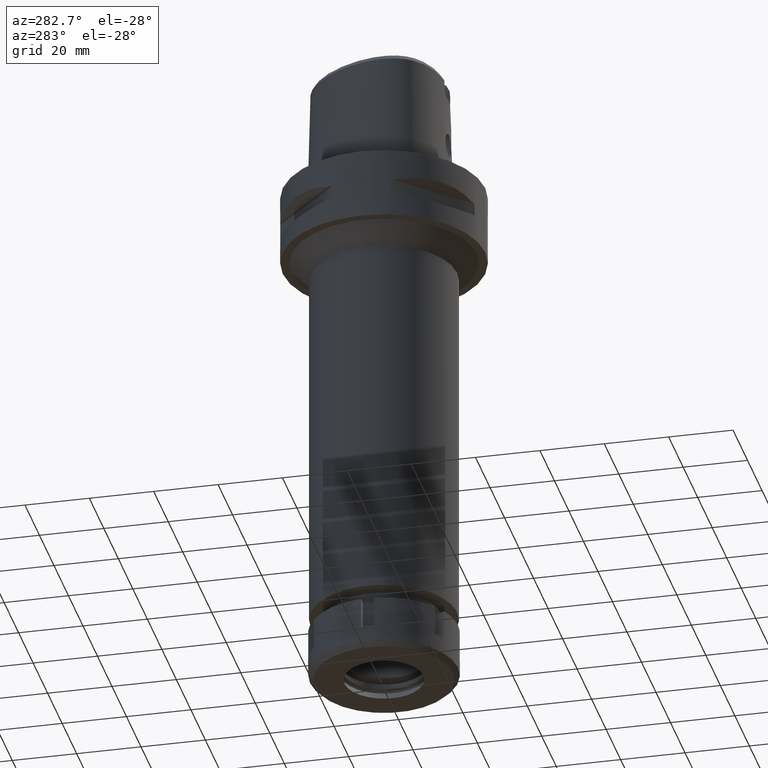
[diagram: clean part render]
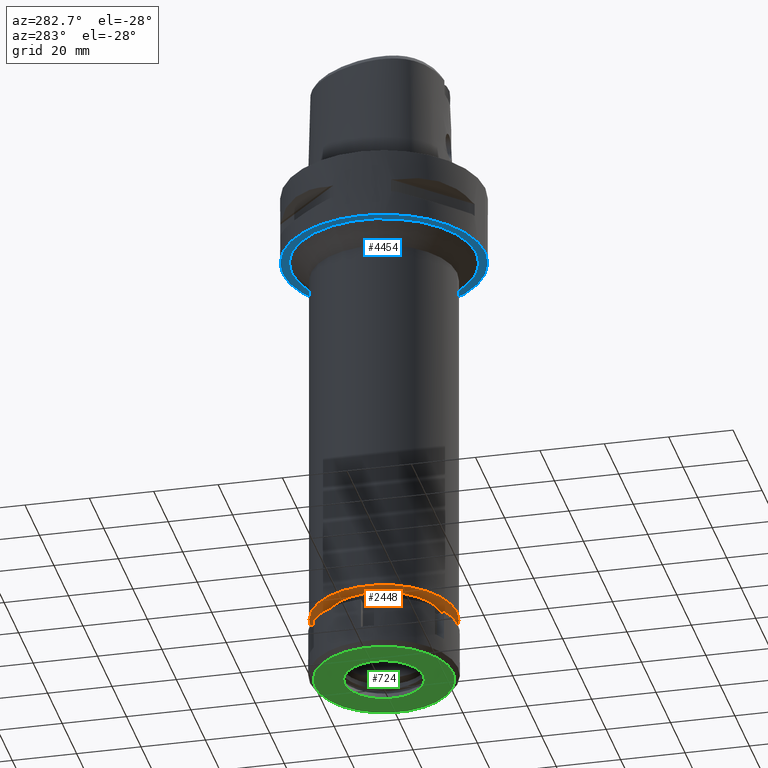
[diagram: same view with three faces highlighted in distinct colors, each labeled with its STEP entity id]
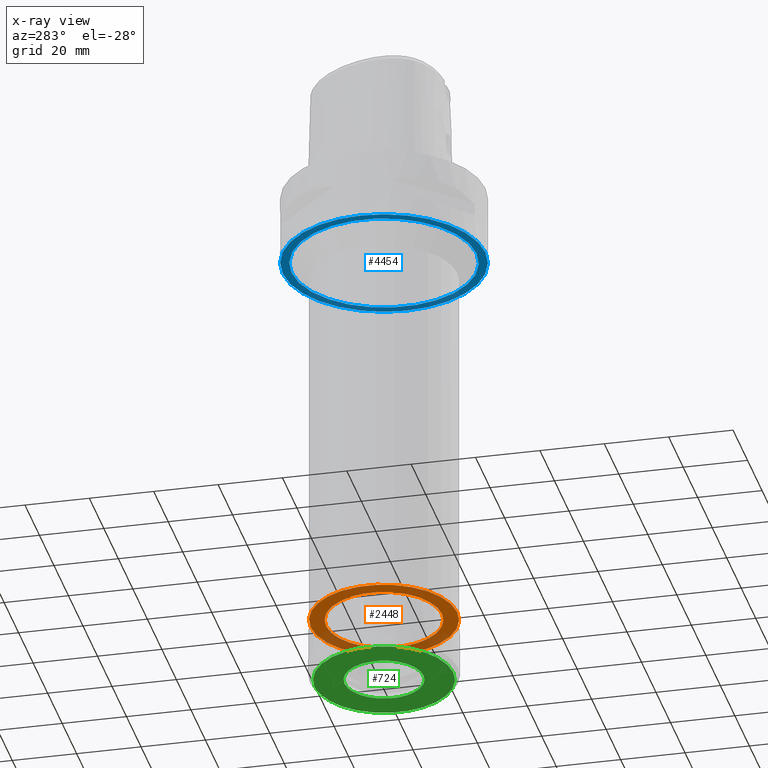
[diagram: x-ray of the same camera — body ghosted, the three highlighted faces saturated]
A machine part, auxiliary view with three faces highlighted in distinct colors.
The next image is the same camera in x-ray (body ghosted, the three faces saturated) — at least one of them is partly hidden behind the body in this view.
Their STEP definitions:

[orange] entity #2448 — the highlighted planar face has unit normal (0, 0, -1).
#31 = EDGE_CURVE ( 'NONE', #2911, #3392, #583, .T. ) ;
#98 = EDGE_CURVE ( 'NONE', #3392, #2911, #4727, .T. ) ;
#118 = CARTESIAN_POINT ( 'NONE',  ( 0.0000000000000000000, 18.00000000000000000, -144.5000000000000000 ) ) ;
#204 = ORIENTED_EDGE ( 'NONE', *, *, #1421, .F. ) ;
#315 = CIRCLE ( 'NONE', #3490, 22.75000000000000000 ) ;
#513 = CARTESIAN_POINT ( 'NONE',  ( 0.0000000000000000000, 1.320781572880000066E-14, -144.5000000000000000 ) ) ;
#524 = CIRCLE ( 'NONE', #5201, 22.75000000000000000 ) ;
#583 = CIRCLE ( 'NONE', #4000, 18.00000000000000000 ) ;
#1161 = ORIENTED_EDGE ( 'NONE', *, *, #31, .F. ) ;
#1255 = DIRECTION ( 'NONE',  ( 0.0000000000000000000, 1.000000000000000000, 0.0000000000000000000 ) ) ;
#1343 = VERTEX_POINT ( 'NONE', #4981 ) ;
#1421 = EDGE_CURVE ( 'NONE', #1343, #1958, #315, .T. ) ;
#1439 = DIRECTION ( 'NONE',  ( 0.0000000000000000000, 0.0000000000000000000, 1.000000000000000000 ) ) ;
#1488 = PLANE ( 'NONE',  #3668 ) ;
#1669 = DIRECTION ( 'NONE',  ( 0.0000000000000000000, -1.000000000000000000, 0.0000000000000000000 ) ) ;
#1823 = ORIENTED_EDGE ( 'NONE', *, *, #3563, .F. ) ;
#1958 = VERTEX_POINT ( 'NONE', #2462 ) ;
#2112 = AXIS2_PLACEMENT_3D ( 'NONE', #3817, #5528, #1669 ) ;
#2448 = ADVANCED_FACE ( 'NONE', ( #5344, #3275 ), #1488, .T. ) ;
#2462 = CARTESIAN_POINT ( 'NONE',  ( 0.0000000000000000000, -22.75000000000000000, -144.5000000000000000 ) ) ;
#2553 = EDGE_LOOP ( 'NONE', ( #1161, #3944 ) ) ;
#2611 = CARTESIAN_POINT ( 'NONE',  ( 0.0000000000000000000, 1.320781572880000066E-14, -144.5000000000000000 ) ) ;
#2786 = DIRECTION ( 'NONE',  ( 0.0000000000000000000, -1.000000000000000000, 0.0000000000000000000 ) ) ;
#2911 = VERTEX_POINT ( 'NONE', #118 ) ;
#3275 = FACE_BOUND ( 'NONE', #2553, .T. ) ;
#3392 = VERTEX_POINT ( 'NONE', #5135 ) ;
#3490 = AXIS2_PLACEMENT_3D ( 'NONE', #2611, #3880, #4380 ) ;
#3563 = EDGE_CURVE ( 'NONE', #1958, #1343, #524, .T. ) ;
#3668 = AXIS2_PLACEMENT_3D ( 'NONE', #4050, #4930, #2786 ) ;
#3817 = CARTESIAN_POINT ( 'NONE',  ( 0.0000000000000000000, 1.320781572880000066E-14, -144.5000000000000000 ) ) ;
#3872 = DIRECTION ( 'NONE',  ( 0.0000000000000000000, 0.0000000000000000000, -1.000000000000000000 ) ) ;
#3880 = DIRECTION ( 'NONE',  ( 0.0000000000000000000, 0.0000000000000000000, 1.000000000000000000 ) ) ;
#3944 = ORIENTED_EDGE ( 'NONE', *, *, #98, .F. ) ;
#4000 = AXIS2_PLACEMENT_3D ( 'NONE', #5164, #3872, #1255 ) ;
#4041 = EDGE_LOOP ( 'NONE', ( #204, #1823 ) ) ;
#4050 = CARTESIAN_POINT ( 'NONE',  ( 0.0000000000000000000, 0.0000000000000000000, -144.5000000000000000 ) ) ;
#4380 = DIRECTION ( 'NONE',  ( 0.0000000000000000000, 1.000000000000000000, 0.0000000000000000000 ) ) ;
#4727 = CIRCLE ( 'NONE', #2112, 18.00000000000000000 ) ;
#4773 = DIRECTION ( 'NONE',  ( 0.0000000000000000000, -1.000000000000000000, 0.0000000000000000000 ) ) ;
#4930 = DIRECTION ( 'NONE',  ( 0.0000000000000000000, 0.0000000000000000000, -1.000000000000000000 ) ) ;
#4981 = CARTESIAN_POINT ( 'NONE',  ( 0.0000000000000000000, 22.75000000000000000, -144.5000000000000000 ) ) ;
#5135 = CARTESIAN_POINT ( 'NONE',  ( 0.0000000000000000000, -18.00000000000000000, -144.5000000000000000 ) ) ;
#5164 = CARTESIAN_POINT ( 'NONE',  ( 0.0000000000000000000, 1.320781572880000066E-14, -144.5000000000000000 ) ) ;
#5201 = AXIS2_PLACEMENT_3D ( 'NONE', #513, #1439, #4773 ) ;
#5344 = FACE_OUTER_BOUND ( 'NONE', #4041, .T. ) ;
#5528 = DIRECTION ( 'NONE',  ( 0.0000000000000000000, 0.0000000000000000000, -1.000000000000000000 ) ) ;

[blue] entity #4454 — the highlighted planar face has unit normal (0, 0, -1).
#153 = DIRECTION ( 'NONE',  ( 0.0000000000000000000, 1.000000000000000000, 0.0000000000000000000 ) ) ;
#254 = VERTEX_POINT ( 'NONE', #5466 ) ;
#335 = CIRCLE ( 'NONE', #2857, 31.50000000000000000 ) ;
#555 = FACE_BOUND ( 'NONE', #3199, .T. ) ;
#641 = DIRECTION ( 'NONE',  ( 0.0000000000000000000, 0.0000000000000000000, -1.000000000000000000 ) ) ;
#710 = ORIENTED_EDGE ( 'NONE', *, *, #3450, .F. ) ;
#889 = CIRCLE ( 'NONE', #3426, 28.75000000000000000 ) ;
#972 = DIRECTION ( 'NONE',  ( 0.0000000000000000000, 0.0000000000000000000, 1.000000000000000000 ) ) ;
#973 = AXIS2_PLACEMENT_3D ( 'NONE', #1033, #2269, #153 ) ;
#978 = CIRCLE ( 'NONE', #973, 28.75000000000000000 ) ;
#1033 = CARTESIAN_POINT ( 'NONE',  ( 0.0000000000000000000, 0.0000000000000000000, -22.00000000000000000 ) ) ;
#1066 = CARTESIAN_POINT ( 'NONE',  ( 0.0000000000000000000, 0.0000000000000000000, -22.00000000000000000 ) ) ;
#1075 = VERTEX_POINT ( 'NONE', #5212 ) ;
#1092 = DIRECTION ( 'NONE',  ( 0.0000000000000000000, -1.000000000000000000, 0.0000000000000000000 ) ) ;
#1412 = AXIS2_PLACEMENT_3D ( 'NONE', #4038, #972, #1817 ) ;
#1419 = EDGE_LOOP ( 'NONE', ( #710, #1954 ) ) ;
#1449 = VERTEX_POINT ( 'NONE', #3474 ) ;
#1817 = DIRECTION ( 'NONE',  ( 0.0000000000000000000, -1.000000000000000000, 0.0000000000000000000 ) ) ;
#1954 = ORIENTED_EDGE ( 'NONE', *, *, #2874, .F. ) ;
#2242 = ORIENTED_EDGE ( 'NONE', *, *, #4523, .F. ) ;
#2269 = DIRECTION ( 'NONE',  ( 0.0000000000000000000, 0.0000000000000000000, -1.000000000000000000 ) ) ;
#2385 = DIRECTION ( 'NONE',  ( 0.0000000000000000000, -1.000000000000000000, 0.0000000000000000000 ) ) ;
#2597 = CARTESIAN_POINT ( 'NONE',  ( 0.0000000000000000000, 1.320781572880000066E-14, -22.00000000000000000 ) ) ;
#2809 = FACE_OUTER_BOUND ( 'NONE', #1419, .T. ) ;
#2856 = VERTEX_POINT ( 'NONE', #5253 ) ;
#2857 = AXIS2_PLACEMENT_3D ( 'NONE', #2597, #4314, #3788 ) ;
#2874 = EDGE_CURVE ( 'NONE', #2856, #1075, #3843, .T. ) ;
#3199 = EDGE_LOOP ( 'NONE', ( #2242, #5520 ) ) ;
#3213 = PLANE ( 'NONE',  #5115 ) ;
#3426 = AXIS2_PLACEMENT_3D ( 'NONE', #1066, #4926, #2385 ) ;
#3450 = EDGE_CURVE ( 'NONE', #1075, #2856, #335, .T. ) ;
#3474 = CARTESIAN_POINT ( 'NONE',  ( 0.0000000000000000000, -28.75000000000000000, -22.00000000000000000 ) ) ;
#3692 = CARTESIAN_POINT ( 'NONE',  ( 0.0000000000000000000, 0.0000000000000000000, -22.00000000000000000 ) ) ;
#3788 = DIRECTION ( 'NONE',  ( 0.0000000000000000000, 1.000000000000000000, 0.0000000000000000000 ) ) ;
#3843 = CIRCLE ( 'NONE', #1412, 31.50000000000000000 ) ;
#4038 = CARTESIAN_POINT ( 'NONE',  ( 0.0000000000000000000, 1.320781572880000066E-14, -22.00000000000000000 ) ) ;
#4314 = DIRECTION ( 'NONE',  ( 0.0000000000000000000, 0.0000000000000000000, 1.000000000000000000 ) ) ;
#4454 = ADVANCED_FACE ( 'NONE', ( #2809, #555 ), #3213, .T. ) ;
#4493 = EDGE_CURVE ( 'NONE', #1449, #254, #889, .T. ) ;
#4523 = EDGE_CURVE ( 'NONE', #254, #1449, #978, .T. ) ;
#4926 = DIRECTION ( 'NONE',  ( 0.0000000000000000000, 0.0000000000000000000, -1.000000000000000000 ) ) ;
#5115 = AXIS2_PLACEMENT_3D ( 'NONE', #3692, #641, #1092 ) ;
#5212 = CARTESIAN_POINT ( 'NONE',  ( 0.0000000000000000000, 31.50000000000000000, -22.00000000000000000 ) ) ;
#5253 = CARTESIAN_POINT ( 'NONE',  ( 0.0000000000000000000, -31.50000000000000000, -22.00000000000000000 ) ) ;
#5466 = CARTESIAN_POINT ( 'NONE',  ( 0.0000000000000000000, 28.75000000000000000, -22.00000000000000000 ) ) ;
#5520 = ORIENTED_EDGE ( 'NONE', *, *, #4493, .F. ) ;

[green] entity #724 — the highlighted planar face has unit normal (0, 0, -1).
#11 = VERTEX_POINT ( 'NONE', #1697 ) ;
#242 = DIRECTION ( 'NONE',  ( 0.0000000000000000000, 0.0000000000000000000, -1.000000000000000000 ) ) ;
#250 = CIRCLE ( 'NONE', #3853, 12.25000000000000000 ) ;
#409 = EDGE_LOOP ( 'NONE', ( #3036, #4218 ) ) ;
#724 = ADVANCED_FACE ( 'NONE', ( #2441, #2416 ), #4160, .T. ) ;
#1009 = CARTESIAN_POINT ( 'NONE',  ( 0.0000000000000000000, 0.0000000000000000000, -16.00000000000000000 ) ) ;
#1096 = DIRECTION ( 'NONE',  ( 0.0000000000000000000, 0.0000000000000000000, -1.000000000000000000 ) ) ;
#1099 = EDGE_LOOP ( 'NONE', ( #5558, #1193 ) ) ;
#1103 = DIRECTION ( 'NONE',  ( 0.0000000000000000000, 0.0000000000000000000, 1.000000000000000000 ) ) ;
#1122 = DIRECTION ( 'NONE',  ( 0.0000000000000000000, -1.000000000000000000, 0.0000000000000000000 ) ) ;
#1193 = ORIENTED_EDGE ( 'NONE', *, *, #2550, .F. ) ;
#1239 = CARTESIAN_POINT ( 'NONE',  ( 0.0000000000000000000, 0.0000000000000000000, -16.00000000000000000 ) ) ;
#1272 = VERTEX_POINT ( 'NONE', #4410 ) ;
#1673 = AXIS2_PLACEMENT_3D ( 'NONE', #1009, #5317, #5400 ) ;
#1697 = CARTESIAN_POINT ( 'NONE',  ( 0.0000000000000000000, -21.50000000000000000, -16.00000000000000000 ) ) ;
#1846 = VERTEX_POINT ( 'NONE', #2718 ) ;
#2021 = DIRECTION ( 'NONE',  ( 0.0000000000000000000, -1.000000000000000000, 0.0000000000000000000 ) ) ;
#2053 = DIRECTION ( 'NONE',  ( 0.0000000000000000000, 1.000000000000000000, 0.0000000000000000000 ) ) ;
#2416 = FACE_BOUND ( 'NONE', #1099, .T. ) ;
#2428 = VERTEX_POINT ( 'NONE', #4077 ) ;
#2441 = FACE_OUTER_BOUND ( 'NONE', #409, .T. ) ;
#2463 = EDGE_CURVE ( 'NONE', #2428, #11, #4368, .T. ) ;
#2550 = EDGE_CURVE ( 'NONE', #1846, #1272, #4109, .T. ) ;
#2718 = CARTESIAN_POINT ( 'NONE',  ( 0.0000000000000000000, -12.25000000000000000, -16.00000000000000000 ) ) ;
#2822 = DIRECTION ( 'NONE',  ( 0.0000000000000000000, -1.000000000000000000, 0.0000000000000000000 ) ) ;
#3036 = ORIENTED_EDGE ( 'NONE', *, *, #2463, .F. ) ;
#3500 = AXIS2_PLACEMENT_3D ( 'NONE', #4957, #1096, #1122 ) ;
#3759 = EDGE_CURVE ( 'NONE', #11, #2428, #3939, .T. ) ;
#3853 = AXIS2_PLACEMENT_3D ( 'NONE', #1239, #4166, #2053 ) ;
#3939 = CIRCLE ( 'NONE', #5380, 21.50000000000000000 ) ;
#4077 = CARTESIAN_POINT ( 'NONE',  ( 0.0000000000000000000, 21.50000000000000000, -16.00000000000000000 ) ) ;
#4106 = CARTESIAN_POINT ( 'NONE',  ( 0.0000000000000000000, 0.0000000000000000000, -16.00000000000000000 ) ) ;
#4109 = CIRCLE ( 'NONE', #3500, 12.25000000000000000 ) ;
#4160 = PLANE ( 'NONE',  #5266 ) ;
#4166 = DIRECTION ( 'NONE',  ( 0.0000000000000000000, 0.0000000000000000000, -1.000000000000000000 ) ) ;
#4218 = ORIENTED_EDGE ( 'NONE', *, *, #3759, .F. ) ;
#4308 = EDGE_CURVE ( 'NONE', #1272, #1846, #250, .T. ) ;
#4368 = CIRCLE ( 'NONE', #1673, 21.50000000000000000 ) ;
#4410 = CARTESIAN_POINT ( 'NONE',  ( 0.0000000000000000000, 12.25000000000000000, -16.00000000000000000 ) ) ;
#4503 = CARTESIAN_POINT ( 'NONE',  ( 0.0000000000000000000, 0.0000000000000000000, -16.00000000000000000 ) ) ;
#4957 = CARTESIAN_POINT ( 'NONE',  ( 0.0000000000000000000, 0.0000000000000000000, -16.00000000000000000 ) ) ;
#5266 = AXIS2_PLACEMENT_3D ( 'NONE', #4106, #242, #2021 ) ;
#5317 = DIRECTION ( 'NONE',  ( 0.0000000000000000000, 0.0000000000000000000, 1.000000000000000000 ) ) ;
#5380 = AXIS2_PLACEMENT_3D ( 'NONE', #4503, #1103, #2822 ) ;
#5400 = DIRECTION ( 'NONE',  ( 0.0000000000000000000, 1.000000000000000000, 0.0000000000000000000 ) ) ;
#5558 = ORIENTED_EDGE ( 'NONE', *, *, #4308, .F. ) ;